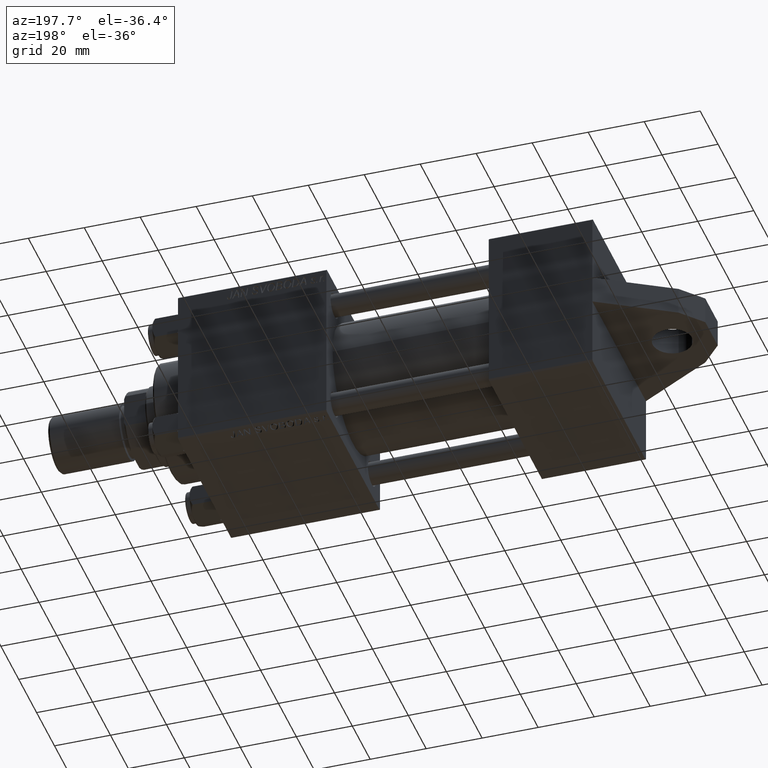
[diagram: clean part render]
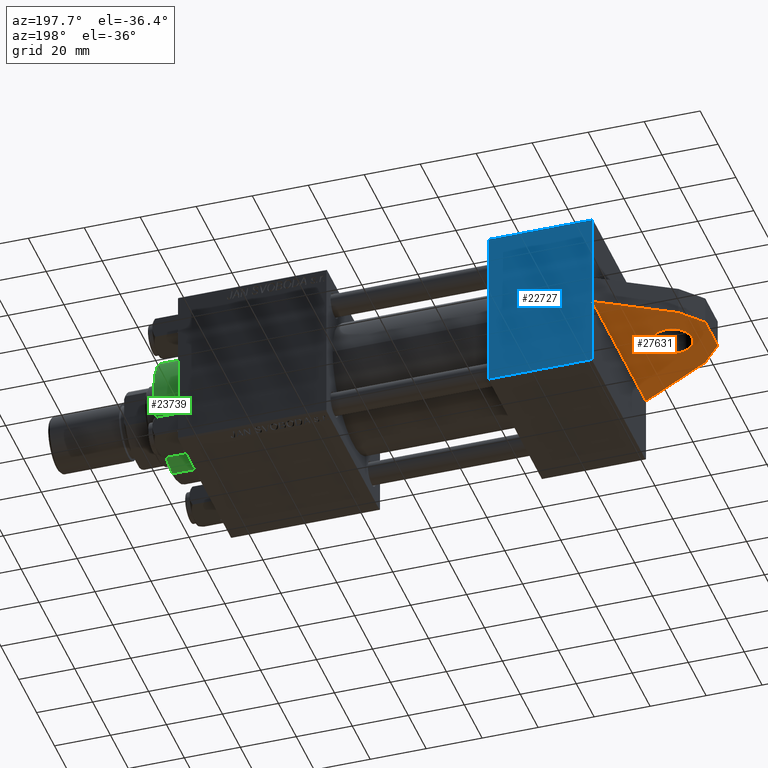
[diagram: same view with three faces highlighted in distinct colors, each labeled with its STEP entity id]
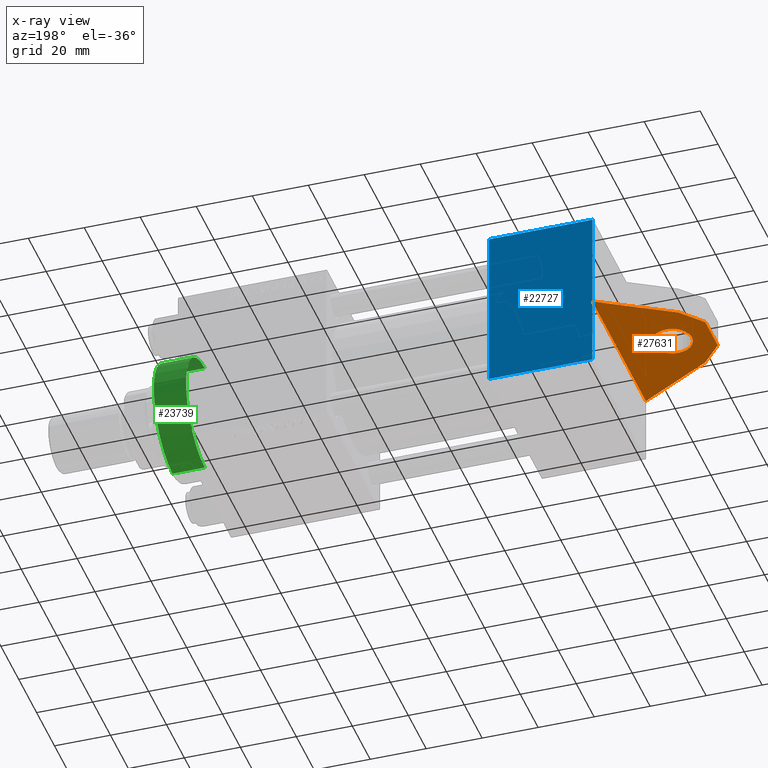
[diagram: x-ray of the same camera — body ghosted, the three highlighted faces saturated]
A machine part, auxiliary view with three faces highlighted in distinct colors.
The next image is the same camera in x-ray (body ghosted, the three faces saturated) — at least one of them is partly hidden behind the body in this view.
Their STEP definitions:

[orange] entity #27631 — the highlighted planar face has unit normal (-0, 0, 1).
#459 = CARTESIAN_POINT ( 'NONE',  ( -33.00000000000000000, -5.000000000000000000, 7.000000000000000000 ) ) ;
#551 = CARTESIAN_POINT ( 'NONE',  ( -19.00000000000000000, -5.000000000000000000, 0.000000000000000000 ) ) ;
#805 = VERTEX_POINT ( 'NONE', #36786 ) ;
#2298 = ORIENTED_EDGE ( 'NONE', *, *, #18676, .F. ) ;
#2626 = CARTESIAN_POINT ( 'NONE',  ( -33.00000000000000000, -5.000000000000000000, -7.000000000000000000 ) ) ;
#2628 = ORIENTED_EDGE ( 'NONE', *, *, #35225, .F. ) ;
#4392 = VECTOR ( 'NONE', #19196, 1000.000000000000000 ) ;
#5607 = LINE ( 'NONE', #15939, #38992 ) ;
#5738 = CARTESIAN_POINT ( 'NONE',  ( 0.000000000000000000, -5.000000000000000000, 29.99999999999999289 ) ) ;
#7251 = FACE_BOUND ( 'NONE', #26124, .T. ) ;
#7704 = CARTESIAN_POINT ( 'NONE',  ( 0.000000000000000000, -5.000000000000000000, 0.000000000000000000 ) ) ;
#8010 = CARTESIAN_POINT ( 'NONE',  ( -33.00000000000000000, -5.000000000000000000, 7.000000000000000000 ) ) ;
#8266 = VECTOR ( 'NONE', #44380, 1000.000000000000000 ) ;
#10756 = CARTESIAN_POINT ( 'NONE',  ( -19.00000000000000000, -5.000000000000000000, 7.000000000000000000 ) ) ;
#11289 = ORIENTED_EDGE ( 'NONE', *, *, #41370, .F. ) ;
#11508 = EDGE_CURVE ( 'NONE', #13669, #30051, #20759, .T. ) ;
#11561 = ORIENTED_EDGE ( 'NONE', *, *, #35335, .F. ) ;
#13669 = VERTEX_POINT ( 'NONE', #38679 ) ;
#15225 = ORIENTED_EDGE ( 'NONE', *, *, #11508, .T. ) ;
#15939 = CARTESIAN_POINT ( 'NONE',  ( -33.00000000000000000, -5.000000000000000000, -7.000000000000000000 ) ) ;
#17626 = CARTESIAN_POINT ( 'NONE',  ( 0.000000000000000000, -5.000000000000000000, 29.99999999999999289 ) ) ;
#17810 = FACE_OUTER_BOUND ( 'NONE', #44605, .T. ) ;
#17865 = LINE ( 'NONE', #459, #39898 ) ;
#18180 = DIRECTION ( 'NONE',  ( 0.000000000000000000, 0.000000000000000000, 1.000000000000000000 ) ) ;
#18676 = EDGE_CURVE ( 'NONE', #24629, #44624, #5607, .T. ) ;
#19196 = DIRECTION ( 'NONE',  ( 0.000000000000000000, 0.000000000000000000, -1.000000000000000000 ) ) ;
#19280 = LINE ( 'NONE', #33870, #21421 ) ;
#19365 = CARTESIAN_POINT ( 'NONE',  ( 0.000000000000000000, -4.999999999999984013, -30.00000000000000355 ) ) ;
#20759 = CIRCLE ( 'NONE', #42590, 7.000000000000000000 ) ;
#21373 = ORIENTED_EDGE ( 'NONE', *, *, #27291, .F. ) ;
#21421 = VECTOR ( 'NONE', #34094, 999.9999999999998863 ) ;
#21787 = DIRECTION ( 'NONE',  ( -0.000000000000000000, 1.000000000000000000, 0.000000000000000000 ) ) ;
#22577 = EDGE_CURVE ( 'NONE', #805, #24629, #33276, .T. ) ;
#22972 = DIRECTION ( 'NONE',  ( 0.000000000000000000, 0.000000000000000000, 1.000000000000000000 ) ) ;
#23211 = CIRCLE ( 'NONE', #40513, 7.000000000000000000 ) ;
#23840 = CARTESIAN_POINT ( 'NONE',  ( -26.00000000000000355, -5.000000000000000000, 14.98889300106956135 ) ) ;
#24629 = VERTEX_POINT ( 'NONE', #2626 ) ;
#25066 = PLANE ( 'NONE',  #25593 ) ;
#25224 = CARTESIAN_POINT ( 'NONE',  ( -26.00000000000000355, -5.000000000000000000, 14.98889300106956135 ) ) ;
#25593 = AXIS2_PLACEMENT_3D ( 'NONE', #7704, #21787, #40136 ) ;
#26124 = EDGE_LOOP ( 'NONE', ( #28160, #15225 ) ) ;
#27291 = EDGE_CURVE ( 'NONE', #44624, #40651, #17865, .T. ) ;
#27631 = ADVANCED_FACE ( 'NONE', ( #7251, #17810 ), #25066, .F. ) ;
#28160 = ORIENTED_EDGE ( 'NONE', *, *, #44221, .T. ) ;
#28973 = DIRECTION ( 'NONE',  ( 0.000000000000000000, 1.000000000000000000, 0.000000000000000000 ) ) ;
#30051 = VERTEX_POINT ( 'NONE', #10756 ) ;
#32425 = DIRECTION ( 'NONE',  ( 0.6590226651366694055, 0.000000000000000000, 0.7521230795795068591 ) ) ;
#32491 = VERTEX_POINT ( 'NONE', #5738 ) ;
#33276 = LINE ( 'NONE', #37277, #8266 ) ;
#33795 = CARTESIAN_POINT ( 'NONE',  ( -19.00000000000000000, -5.000000000000000000, 0.000000000000000000 ) ) ;
#33870 = CARTESIAN_POINT ( 'NONE',  ( -26.00000000000000355, -5.000000000000000000, -14.98889300106956135 ) ) ;
#34094 = DIRECTION ( 'NONE',  ( -0.8660254037844361541, -0.000000000000000000, 0.5000000000000043299 ) ) ;
#35225 = EDGE_CURVE ( 'NONE', #40651, #32491, #41986, .T. ) ;
#35335 = EDGE_CURVE ( 'NONE', #39540, #805, #19280, .T. ) ;
#36786 = CARTESIAN_POINT ( 'NONE',  ( -26.00000000000000355, -5.000000000000000000, -14.98889300106956135 ) ) ;
#37277 = CARTESIAN_POINT ( 'NONE',  ( -33.00000000000000000, -5.000000000000000000, -7.000000000000000000 ) ) ;
#37558 = DIRECTION ( 'NONE',  ( 0.000000000000000000, 0.000000000000000000, 1.000000000000000000 ) ) ;
#37933 = VECTOR ( 'NONE', #38203, 999.9999999999998863 ) ;
#38203 = DIRECTION ( 'NONE',  ( 0.8660254037844363761, 0.000000000000000000, 0.5000000000000039968 ) ) ;
#38679 = CARTESIAN_POINT ( 'NONE',  ( -19.00000000000000000, -5.000000000000000000, -7.000000000000000000 ) ) ;
#38992 = VECTOR ( 'NONE', #22972, 1000.000000000000000 ) ;
#39258 = LINE ( 'NONE', #17626, #4392 ) ;
#39540 = VERTEX_POINT ( 'NONE', #19365 ) ;
#39898 = VECTOR ( 'NONE', #32425, 1000.000000000000000 ) ;
#40136 = DIRECTION ( 'NONE',  ( 0.000000000000000000, -0.000000000000000000, 1.000000000000000000 ) ) ;
#40513 = AXIS2_PLACEMENT_3D ( 'NONE', #33795, #41110, #37558 ) ;
#40651 = VERTEX_POINT ( 'NONE', #25224 ) ;
#41110 = DIRECTION ( 'NONE',  ( 0.000000000000000000, 1.000000000000000000, 0.000000000000000000 ) ) ;
#41370 = EDGE_CURVE ( 'NONE', #32491, #39540, #39258, .T. ) ;
#41432 = ORIENTED_EDGE ( 'NONE', *, *, #22577, .F. ) ;
#41986 = LINE ( 'NONE', #23840, #37933 ) ;
#42590 = AXIS2_PLACEMENT_3D ( 'NONE', #551, #28973, #18180 ) ;
#44221 = EDGE_CURVE ( 'NONE', #30051, #13669, #23211, .T. ) ;
#44380 = DIRECTION ( 'NONE',  ( -0.6590226651366694055, -0.000000000000000000, 0.7521230795795068591 ) ) ;
#44605 = EDGE_LOOP ( 'NONE', ( #21373, #2298, #41432, #11561, #11289, #2628 ) ) ;
#44624 = VERTEX_POINT ( 'NONE', #8010 ) ;

[blue] entity #22727 — the highlighted planar face has unit normal (-0, 1, 0).
#497 = FACE_OUTER_BOUND ( 'NONE', #26262, .T. ) ;
#949 = CARTESIAN_POINT ( 'NONE',  ( 37.00000000000000000, -29.50000000000000000, -30.00000000000000711 ) ) ;
#1892 = VECTOR ( 'NONE', #45519, 1000.000000000000000 ) ;
#2239 = EDGE_CURVE ( 'NONE', #21856, #7593, #19634, .T. ) ;
#2749 = ORIENTED_EDGE ( 'NONE', *, *, #28100, .T. ) ;
#3095 = CARTESIAN_POINT ( 'NONE',  ( 37.00000000000000000, 29.99999999999999289, -30.00000000000000000 ) ) ;
#5821 = DIRECTION ( 'NONE',  ( 0.000000000000000000, -1.000000000000000000, -1.156482317317871725E-16 ) ) ;
#6372 = ORIENTED_EDGE ( 'NONE', *, *, #35218, .T. ) ;
#6975 = CARTESIAN_POINT ( 'NONE',  ( 0.000000000000000000, 5.000000000000000000, -30.00000000000000711 ) ) ;
#7593 = VERTEX_POINT ( 'NONE', #11002 ) ;
#8645 = LINE ( 'NONE', #27158, #11350 ) ;
#8779 = LINE ( 'NONE', #34140, #26410 ) ;
#11002 = CARTESIAN_POINT ( 'NONE',  ( 0.000000000000000000, -29.50000000000000000, -30.00000000000000711 ) ) ;
#11099 = DIRECTION ( 'NONE',  ( 0.000000000000000000, 1.156482317317871725E-16, -1.000000000000000000 ) ) ;
#11350 = VECTOR ( 'NONE', #5821, 1000.000000000000000 ) ;
#12199 = CARTESIAN_POINT ( 'NONE',  ( 0.000000000000000000, 29.99999999999999289, -30.00000000000000000 ) ) ;
#14775 = LINE ( 'NONE', #12199, #24464 ) ;
#17032 = LINE ( 'NONE', #31590, #1892 ) ;
#17482 = CARTESIAN_POINT ( 'NONE',  ( 37.00000000000000000, 29.49999999999997868, -30.00000000000000000 ) ) ;
#18395 = VECTOR ( 'NONE', #42370, 1000.000000000000000 ) ;
#19099 = VERTEX_POINT ( 'NONE', #17482 ) ;
#19365 = CARTESIAN_POINT ( 'NONE',  ( 0.000000000000000000, -4.999999999999984013, -30.00000000000000355 ) ) ;
#19634 = LINE ( 'NONE', #41525, #26588 ) ;
#19794 = DIRECTION ( 'NONE',  ( 1.000000000000000000, 0.000000000000000000, 0.000000000000000000 ) ) ;
#21019 = ORIENTED_EDGE ( 'NONE', *, *, #34334, .T. ) ;
#21856 = VERTEX_POINT ( 'NONE', #949 ) ;
#22727 = ADVANCED_FACE ( 'NONE', ( #497 ), #43321, .T. ) ;
#23618 = DIRECTION ( 'NONE',  ( -1.000000000000000000, 0.000000000000000000, 0.000000000000000000 ) ) ;
#24208 = ORIENTED_EDGE ( 'NONE', *, *, #37025, .F. ) ;
#24464 = VECTOR ( 'NONE', #40161, 1000.000000000000000 ) ;
#24928 = VERTEX_POINT ( 'NONE', #44464 ) ;
#25986 = EDGE_CURVE ( 'NONE', #24928, #32473, #8645, .T. ) ;
#26262 = EDGE_LOOP ( 'NONE', ( #42673, #2749, #21019, #31081, #24208, #6372 ) ) ;
#26410 = VECTOR ( 'NONE', #19794, 1000.000000000000000 ) ;
#26588 = VECTOR ( 'NONE', #23618, 1000.000000000000000 ) ;
#27158 = CARTESIAN_POINT ( 'NONE',  ( 0.000000000000000000, 29.99999999999999289, -30.00000000000000000 ) ) ;
#27294 = LINE ( 'NONE', #3095, #18395 ) ;
#28100 = EDGE_CURVE ( 'NONE', #24928, #19099, #8779, .T. ) ;
#31081 = ORIENTED_EDGE ( 'NONE', *, *, #2239, .T. ) ;
#31590 = CARTESIAN_POINT ( 'NONE',  ( 0.000000000000000000, -5.000000000000000000, -30.00000000000000711 ) ) ;
#32473 = VERTEX_POINT ( 'NONE', #6975 ) ;
#33002 = AXIS2_PLACEMENT_3D ( 'NONE', #40003, #11099, #33163 ) ;
#33163 = DIRECTION ( 'NONE',  ( 0.000000000000000000, 1.000000000000000000, 1.156482317317871725E-16 ) ) ;
#34140 = CARTESIAN_POINT ( 'NONE',  ( 37.00000000000000000, 29.49999999999997868, -30.00000000000000000 ) ) ;
#34334 = EDGE_CURVE ( 'NONE', #19099, #21856, #27294, .T. ) ;
#35218 = EDGE_CURVE ( 'NONE', #39540, #32473, #17032, .T. ) ;
#37025 = EDGE_CURVE ( 'NONE', #39540, #7593, #14775, .T. ) ;
#39540 = VERTEX_POINT ( 'NONE', #19365 ) ;
#40003 = CARTESIAN_POINT ( 'NONE',  ( 37.00000000000000000, 29.99999999999999289, -30.00000000000000000 ) ) ;
#40161 = DIRECTION ( 'NONE',  ( 0.000000000000000000, -1.000000000000000000, -1.156482317317871725E-16 ) ) ;
#41525 = CARTESIAN_POINT ( 'NONE',  ( 0.000000000000000000, -29.50000000000001066, -30.00000000000000711 ) ) ;
#42370 = DIRECTION ( 'NONE',  ( 0.000000000000000000, -1.000000000000000000, -1.156482317317871725E-16 ) ) ;
#42673 = ORIENTED_EDGE ( 'NONE', *, *, #25986, .F. ) ;
#43321 = PLANE ( 'NONE',  #33002 ) ;
#44464 = CARTESIAN_POINT ( 'NONE',  ( 0.000000000000000000, 29.49999999999997868, -30.00000000000000000 ) ) ;
#45519 = DIRECTION ( 'NONE',  ( 0.000000000000000000, 1.000000000000000000, 0.000000000000000000 ) ) ;

[green] entity #23739 — the highlighted cylindrical surface (partial cylindrical patch) has radius 21 mm, axis along (-1, -0, -0).
#90 = LINE ( 'NONE', #21916, #1208 ) ;
#1208 = VECTOR ( 'NONE', #18171, 1000.000000000000000 ) ;
#1925 = FACE_OUTER_BOUND ( 'NONE', #3425, .T. ) ;
#3425 = EDGE_LOOP ( 'NONE', ( #6815, #22803, #26811, #24219 ) ) ;
#5936 = CYLINDRICAL_SURFACE ( 'NONE', #10555, 21.00000000000000000 ) ;
#6701 = DIRECTION ( 'NONE',  ( 1.000000000000000000, 0.000000000000000000, 0.000000000000000000 ) ) ;
#6815 = ORIENTED_EDGE ( 'NONE', *, *, #10386, .T. ) ;
#8585 = DIRECTION ( 'NONE',  ( 1.000000000000000000, 0.000000000000000000, 0.000000000000000000 ) ) ;
#9350 = VERTEX_POINT ( 'NONE', #19094 ) ;
#10386 = EDGE_CURVE ( 'NONE', #39996, #25941, #38760, .T. ) ;
#10555 = AXIS2_PLACEMENT_3D ( 'NONE', #12763, #38351, #44515 ) ;
#11698 = LINE ( 'NONE', #11940, #14927 ) ;
#11940 = CARTESIAN_POINT ( 'NONE',  ( -21.00000000000000000, 0.000000000000000000, 40.70000000000000284 ) ) ;
#12763 = CARTESIAN_POINT ( 'NONE',  ( 0.000000000000000000, 0.000000000000000000, 40.70000000000000284 ) ) ;
#14927 = VECTOR ( 'NONE', #15455, 1000.000000000000000 ) ;
#15421 = CARTESIAN_POINT ( 'NONE',  ( -21.00000000000000000, 0.000000000000000000, 28.69999999999999929 ) ) ;
#15455 = DIRECTION ( 'NONE',  ( -0.000000000000000000, -0.000000000000000000, -1.000000000000000000 ) ) ;
#18171 = DIRECTION ( 'NONE',  ( -0.000000000000000000, -0.000000000000000000, -1.000000000000000000 ) ) ;
#19094 = CARTESIAN_POINT ( 'NONE',  ( 21.00000000000000000, 2.571758278209441661E-15, 28.69999999999999929 ) ) ;
#21916 = CARTESIAN_POINT ( 'NONE',  ( 21.00000000000000000, 2.571758278209441661E-15, 40.70000000000000284 ) ) ;
#22803 = ORIENTED_EDGE ( 'NONE', *, *, #36291, .T. ) ;
#23739 = ADVANCED_FACE ( 'NONE', ( #1925 ), #5936, .T. ) ;
#24219 = ORIENTED_EDGE ( 'NONE', *, *, #42631, .F. ) ;
#25941 = VERTEX_POINT ( 'NONE', #45324 ) ;
#26811 = ORIENTED_EDGE ( 'NONE', *, *, #39500, .T. ) ;
#26821 = CIRCLE ( 'NONE', #32051, 21.00000000000000000 ) ;
#32051 = AXIS2_PLACEMENT_3D ( 'NONE', #35607, #40784, #8585 ) ;
#35607 = CARTESIAN_POINT ( 'NONE',  ( 0.000000000000000000, 0.000000000000000000, 28.69999999999999929 ) ) ;
#36291 = EDGE_CURVE ( 'NONE', #25941, #9350, #90, .T. ) ;
#38351 = DIRECTION ( 'NONE',  ( -0.000000000000000000, -0.000000000000000000, -1.000000000000000000 ) ) ;
#38760 = CIRCLE ( 'NONE', #44058, 21.00000000000000000 ) ;
#39345 = DIRECTION ( 'NONE',  ( 0.000000000000000000, 0.000000000000000000, -1.000000000000000000 ) ) ;
#39500 = EDGE_CURVE ( 'NONE', #9350, #45881, #26821, .T. ) ;
#39996 = VERTEX_POINT ( 'NONE', #40178 ) ;
#40178 = CARTESIAN_POINT ( 'NONE',  ( -21.00000000000000000, 0.000000000000000000, 40.19999999999998863 ) ) ;
#40784 = DIRECTION ( 'NONE',  ( 0.000000000000000000, 0.000000000000000000, 1.000000000000000000 ) ) ;
#42444 = CARTESIAN_POINT ( 'NONE',  ( 0.000000000000000000, 0.000000000000000000, 40.19999999999998863 ) ) ;
#42631 = EDGE_CURVE ( 'NONE', #39996, #45881, #11698, .T. ) ;
#44058 = AXIS2_PLACEMENT_3D ( 'NONE', #42444, #39345, #6701 ) ;
#44515 = DIRECTION ( 'NONE',  ( -1.000000000000000000, 0.000000000000000000, 0.000000000000000000 ) ) ;
#45324 = CARTESIAN_POINT ( 'NONE',  ( 21.00000000000000000, 2.571758278209441661E-15, 40.19999999999998863 ) ) ;
#45881 = VERTEX_POINT ( 'NONE', #15421 ) ;